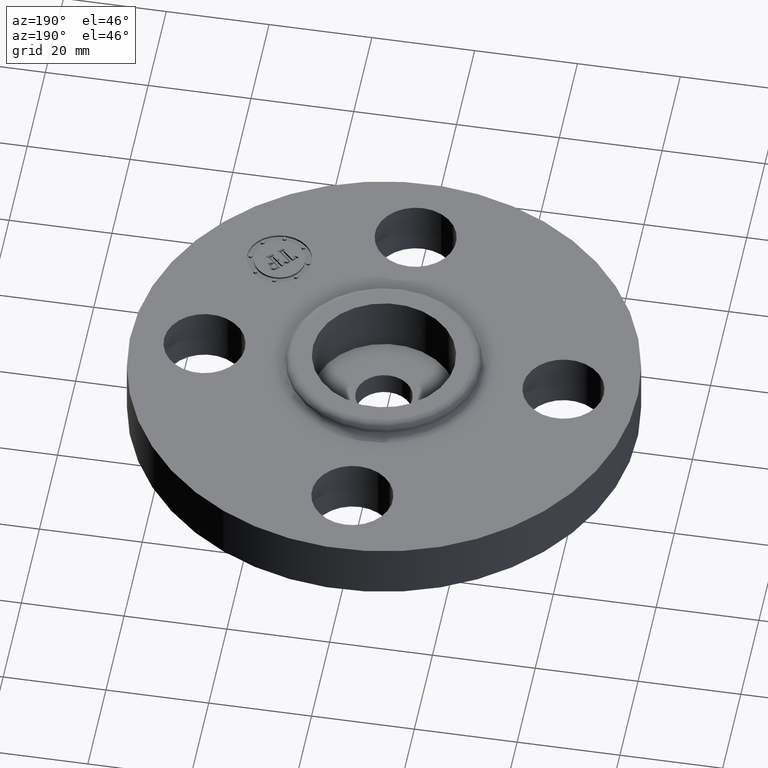
[diagram: clean part render]
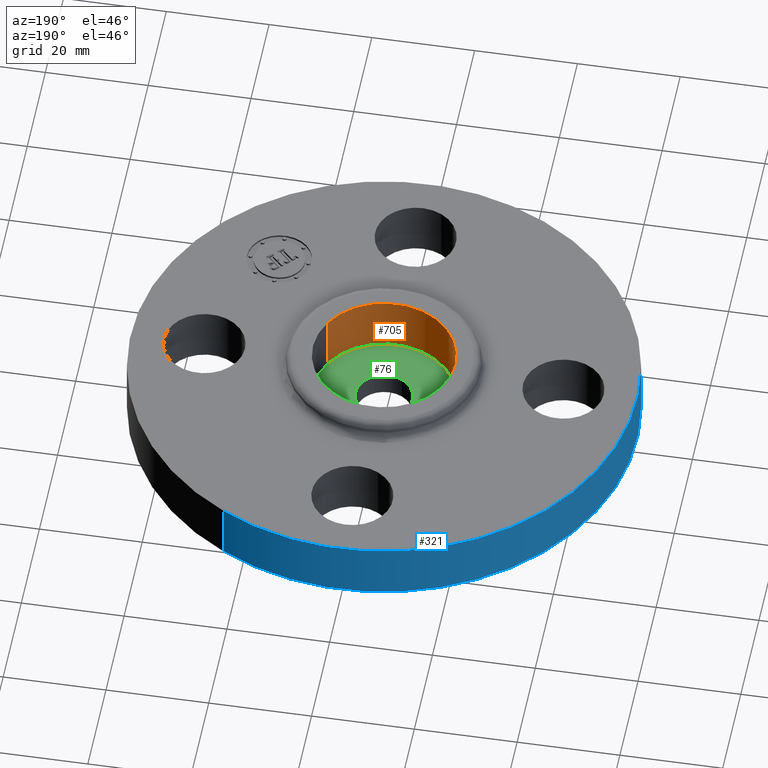
[diagram: same view with three faces highlighted in distinct colors, each labeled with its STEP entity id]
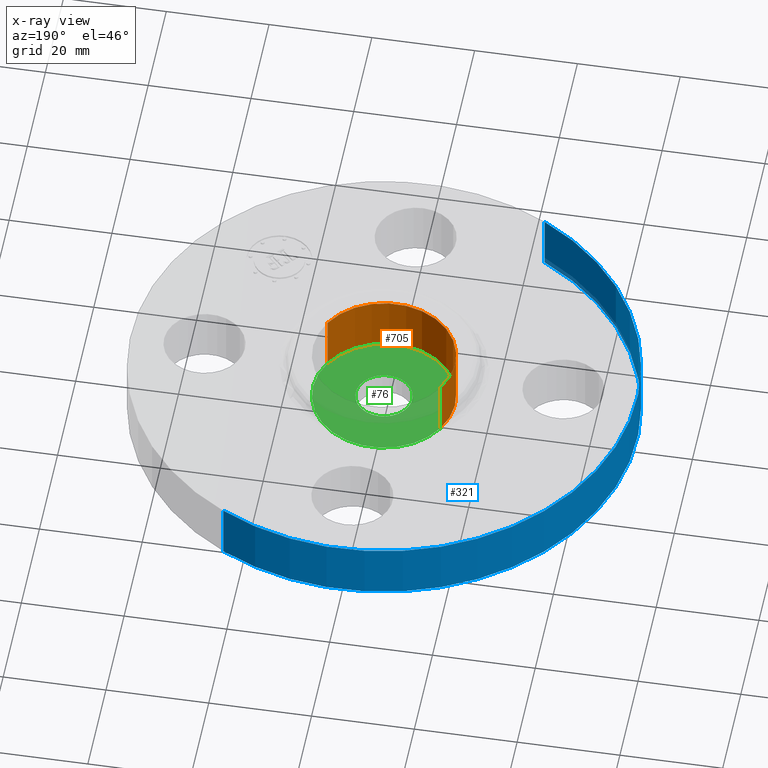
[diagram: x-ray of the same camera — body ghosted, the three highlighted faces saturated]
A machine part, auxiliary view with three faces highlighted in distinct colors.
The next image is the same camera in x-ray (body ghosted, the three faces saturated) — at least one of them is partly hidden behind the body in this view.
Their STEP definitions:

[orange] entity #705 — the highlighted cylindrical surface (partial cylindrical patch) has radius 13.843 mm, axis along (0, 0, -1).
#51=AXIS2_PLACEMENT_3D('Circle Axis2P3D',#49,#50,$) ;
#497=AXIS2_PLACEMENT_3D('Circle Axis2P3D',#495,#496,$) ;
#680=AXIS2_PLACEMENT_3D('Cylinder Axis2P3D',#677,#678,#679) ;
#44=CARTESIAN_POINT('Vertex',(-0.478282496232,0.26128691854,0.12)) ;
#46=CARTESIAN_POINT('Vertex',(0.478282496232,-0.26128691854,0.12)) ;
#49=CARTESIAN_POINT('Axis2P3D Location',(1.39870617276E-016,1.04902962957E-016,0.12)) ;
#490=CARTESIAN_POINT('Vertex',(-0.478282496232,0.26128691854,0.560000000002)) ;
#492=CARTESIAN_POINT('Vertex',(0.478282496232,-0.26128691854,0.560000000002)) ;
#495=CARTESIAN_POINT('Axis2P3D Location',(1.74838271595E-016,1.39870617276E-016,0.560000000002)) ;
#677=CARTESIAN_POINT('Axis2P3D Location',(1.39870617276E-016,1.04902962957E-016,0.556062992128)) ;
#682=CARTESIAN_POINT('Line Origine',(-0.478282496232,0.26128691854,0.340000000001)) ;
#687=CARTESIAN_POINT('Line Origine',(0.478282496232,-0.26128691854,0.340000000001)) ;
#50=DIRECTION('Axis2P3D Direction',(0.,0.,-0.0393700787402)) ;
#496=DIRECTION('Axis2P3D Direction',(0.,0.,-0.0393700787402)) ;
#678=DIRECTION('Axis2P3D Direction',(0.,0.,-0.0393700787402)) ;
#679=DIRECTION('Axis2P3D XDirection',(0.0345504945626,-0.0188750212049,0.)) ;
#683=DIRECTION('Vector Direction',(0.,0.,-0.0393700787402)) ;
#688=DIRECTION('Vector Direction',(0.,0.,-0.0393700787402)) ;
#684=VECTOR('Line Direction',#683,0.0393700787402) ;
#689=VECTOR('Line Direction',#688,0.0393700787402) ;
#700=ORIENTED_EDGE('',*,*,#499,.F.) ;
#701=ORIENTED_EDGE('',*,*,#691,.F.) ;
#702=ORIENTED_EDGE('',*,*,#53,.T.) ;
#703=ORIENTED_EDGE('',*,*,#686,.T.) ;
#705=ADVANCED_FACE('PartBody',(#704),#681,.F.) ;
#52=CIRCLE('generated circle',#51,0.545000000002) ;
#498=CIRCLE('generated circle',#497,0.545000000002) ;
#681=CYLINDRICAL_SURFACE('generated cylinder',#680,0.545000000002) ;
#53=EDGE_CURVE('',#47,#45,#52,.T.) ;
#499=EDGE_CURVE('',#493,#491,#498,.T.) ;
#686=EDGE_CURVE('',#45,#491,#685,.F.) ;
#691=EDGE_CURVE('',#47,#493,#690,.F.) ;
#699=EDGE_LOOP('',(#700,#701,#702,#703)) ;
#704=FACE_OUTER_BOUND('',#699,.T.) ;
#685=LINE('Line',#682,#684) ;
#690=LINE('Line',#687,#689) ;
#45=VERTEX_POINT('',#44) ;
#47=VERTEX_POINT('',#46) ;
#491=VERTEX_POINT('',#490) ;
#493=VERTEX_POINT('',#492) ;

[blue] entity #321 — the highlighted cylindrical surface (partial cylindrical patch) has radius 49.276 mm, axis along (0, 0, -1).
#198=AXIS2_PLACEMENT_3D('Circle Axis2P3D',#196,#197,$) ;
#294=AXIS2_PLACEMENT_3D('Cylinder Axis2P3D',#291,#292,#293) ;
#305=AXIS2_PLACEMENT_3D('Circle Axis2P3D',#303,#304,$) ;
#196=CARTESIAN_POINT('Axis2P3D Location',(0.,0.,0.)) ;
#200=CARTESIAN_POINT('Vertex',(-0.930085544896,-1.70251017007,2.09805925913E-016)) ;
#202=CARTESIAN_POINT('Vertex',(0.930085544896,1.70251017007,2.09805925913E-016)) ;
#291=CARTESIAN_POINT('Axis2P3D Location',(0.,0.,0.248750000001)) ;
#296=CARTESIAN_POINT('Line Origine',(-0.930085544896,-1.70251017007,0.220000000001)) ;
#300=CARTESIAN_POINT('Vertex',(-0.930085544896,-1.70251017007,0.440000000002)) ;
#303=CARTESIAN_POINT('Axis2P3D Location',(0.,0.,0.440000000002)) ;
#307=CARTESIAN_POINT('Vertex',(0.930085544896,1.70251017007,0.440000000002)) ;
#310=CARTESIAN_POINT('Line Origine',(0.930085544896,1.70251017007,0.220000000001)) ;
#197=DIRECTION('Axis2P3D Direction',(0.,0.,-0.0393700787402)) ;
#292=DIRECTION('Axis2P3D Direction',(0.,0.,-0.0393700787402)) ;
#293=DIRECTION('Axis2P3D XDirection',(0.0188750212049,0.0345504945626,0.)) ;
#297=DIRECTION('Vector Direction',(0.,0.,-0.0393700787402)) ;
#304=DIRECTION('Axis2P3D Direction',(0.,0.,-0.0393700787402)) ;
#311=DIRECTION('Vector Direction',(0.,0.,-0.0393700787402)) ;
#298=VECTOR('Line Direction',#297,0.0393700787402) ;
#312=VECTOR('Line Direction',#311,0.0393700787402) ;
#316=ORIENTED_EDGE('',*,*,#204,.F.) ;
#317=ORIENTED_EDGE('',*,*,#302,.T.) ;
#318=ORIENTED_EDGE('',*,*,#309,.T.) ;
#319=ORIENTED_EDGE('',*,*,#314,.F.) ;
#321=ADVANCED_FACE('PartBody',(#320),#295,.T.) ;
#199=CIRCLE('generated circle',#198,1.94000000001) ;
#306=CIRCLE('generated circle',#305,1.94000000001) ;
#295=CYLINDRICAL_SURFACE('generated cylinder',#294,1.94000000001) ;
#204=EDGE_CURVE('',#201,#203,#199,.T.) ;
#302=EDGE_CURVE('',#201,#301,#299,.F.) ;
#309=EDGE_CURVE('',#301,#308,#306,.T.) ;
#314=EDGE_CURVE('',#203,#308,#313,.F.) ;
#315=EDGE_LOOP('',(#316,#317,#318,#319)) ;
#320=FACE_OUTER_BOUND('',#315,.T.) ;
#299=LINE('Line',#296,#298) ;
#313=LINE('Line',#310,#312) ;
#201=VERTEX_POINT('',#200) ;
#203=VERTEX_POINT('',#202) ;
#301=VERTEX_POINT('',#300) ;
#308=VERTEX_POINT('',#307) ;

[green] entity #76 — the highlighted planar face has unit normal (0, 0, -1).
#38=AXIS2_PLACEMENT_3D('Plane Axis2P3D',#35,#36,#37) ;
#42=AXIS2_PLACEMENT_3D('Circle Axis2P3D',#40,#41,$) ;
#51=AXIS2_PLACEMENT_3D('Circle Axis2P3D',#49,#50,$) ;
#60=AXIS2_PLACEMENT_3D('Circle Axis2P3D',#58,#59,$) ;
#69=AXIS2_PLACEMENT_3D('Circle Axis2P3D',#67,#68,$) ;
#35=CARTESIAN_POINT('Axis2P3D Location',(1.39870617276E-016,1.04902962957E-016,0.12)) ;
#40=CARTESIAN_POINT('Axis2P3D Location',(1.39870617276E-016,1.04902962957E-016,0.12)) ;
#44=CARTESIAN_POINT('Vertex',(-0.478282496232,0.26128691854,0.12)) ;
#46=CARTESIAN_POINT('Vertex',(0.478282496232,-0.26128691854,0.12)) ;
#49=CARTESIAN_POINT('Axis2P3D Location',(1.39870617276E-016,1.04902962957E-016,0.12)) ;
#58=CARTESIAN_POINT('Axis2P3D Location',(-8.74191357973E-017,-4.37095678986E-017,0.12)) ;
#62=CARTESIAN_POINT('Vertex',(-0.104035341878,-0.190435415931,0.12)) ;
#64=CARTESIAN_POINT('Vertex',(0.104035341878,0.190435415931,0.12)) ;
#67=CARTESIAN_POINT('Axis2P3D Location',(-8.74191357973E-017,-4.37095678986E-017,0.12)) ;
#36=DIRECTION('Axis2P3D Direction',(0.,0.,-0.0393700787402)) ;
#37=DIRECTION('Axis2P3D XDirection',(0.0393700787402,0.,0.)) ;
#41=DIRECTION('Axis2P3D Direction',(0.,0.,-0.0393700787402)) ;
#50=DIRECTION('Axis2P3D Direction',(0.,0.,-0.0393700787402)) ;
#59=DIRECTION('Axis2P3D Direction',(0.,0.,-0.0393700787402)) ;
#68=DIRECTION('Axis2P3D Direction',(0.,0.,-0.0393700787402)) ;
#55=ORIENTED_EDGE('',*,*,#48,.F.) ;
#56=ORIENTED_EDGE('',*,*,#53,.F.) ;
#73=ORIENTED_EDGE('',*,*,#66,.T.) ;
#74=ORIENTED_EDGE('',*,*,#71,.T.) ;
#75=FACE_BOUND('',#72,.T.) ;
#76=ADVANCED_FACE('PartBody',(#57,#75),#39,.F.) ;
#43=CIRCLE('generated circle',#42,0.545000000002) ;
#52=CIRCLE('generated circle',#51,0.545000000002) ;
#61=CIRCLE('generated circle',#60,0.217000000001) ;
#70=CIRCLE('generated circle',#69,0.217000000001) ;
#48=EDGE_CURVE('',#45,#47,#43,.T.) ;
#53=EDGE_CURVE('',#47,#45,#52,.T.) ;
#66=EDGE_CURVE('',#63,#65,#61,.T.) ;
#71=EDGE_CURVE('',#65,#63,#70,.T.) ;
#54=EDGE_LOOP('',(#55,#56)) ;
#72=EDGE_LOOP('',(#73,#74)) ;
#57=FACE_OUTER_BOUND('',#54,.T.) ;
#39=PLANE('',#38) ;
#45=VERTEX_POINT('',#44) ;
#47=VERTEX_POINT('',#46) ;
#63=VERTEX_POINT('',#62) ;
#65=VERTEX_POINT('',#64) ;